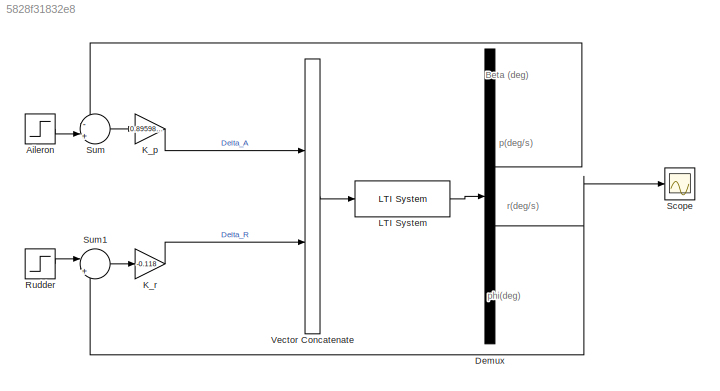
MODEL slx_5828f31832e8
KIND model
CONFIG AbsTol = auto
CONFIG EnableMultiTasking = off
CONFIG FixedStep = auto
CONFIG MaxStep = auto
CONFIG MinStep = auto
CONFIG RelTol = 1e-3
CONFIG SampleTimeConstraint = Unconstrained
CONFIG Solver = VariableStepAuto
CONFIG SolverName = VariableStepAuto
CONFIG StartTime = 0.0
CONFIG StopTime = 100
BLOCK [Step] Aileron
  SampleTime = 0
BLOCK [Demux] Demux
  DisplayOption = bar
  Ports = [1, 4]
BLOCK [Gain] K_p
  Gain = 0.895985533799095
  OutDataTypeStr = Inherit: Inherit via internal rule
  ParamDataTypeStr = Inherit: Inherit via internal rule
  SaturateOnIntegerOverflow = off
BLOCK [Gain] K_r 
  Gain = -0.118
  OutDataTypeStr = Inherit: Inherit via internal rule
  ParamDataTypeStr = Inherit: Inherit via internal rule
  SaturateOnIntegerOverflow = off
BLOCK [Reference] LTI System  REF=cstblocks/LTI System
  Ports = [1, 1]
  SourceBlock = cstblocks/LTI System
  SourceProductBaseCode = CT
  SourceProductName = Control System Toolbox
  SourceType = LTI Block
BLOCK [Step] Rudder
  After = 0
  SampleTime = 0
BLOCK [Scope] Scope
  Floating = off
  NumInputPorts = 1
  Ports = [1]
  ScopeSpecificationString = Simulink.scopes.TimeScopeBlockCfg('CurrentConfiguration', extmgr.ConfigurationSet(extmgr.Configuration('Core','General UI',true),extmgr.Configuration('Core','Source UI',true),extmgr.Configuration('Sources','WiredSimulink',true),extmgr.Configuration('Visuals','Time Domain',true,'SerializedDisplays',{struct('MinYLimReal','-0.30773','MaxYLimReal','2.66888','YLabelReal','','MinYLimMag','0.00000','MaxY...<+1327ch>
BLOCK [Sum] Sum
  IconShape = round
  InputSameDT = off
  Inputs = -|+||
  OutDataTypeStr = Inherit: Inherit via internal rule
  Ports = [2, 1]
  SaturateOnIntegerOverflow = off
BLOCK [Sum] Sum1
  IconShape = round
  InputSameDT = off
  Inputs = ||+|-
  OutDataTypeStr = Inherit: Inherit via internal rule
  Ports = [2, 1]
  SaturateOnIntegerOverflow = off
BLOCK [Concatenate] Vector Concatenate
  Ports = [2, 1]
ANNOTATION (root): Beta (deg)
ANNOTATION (root): p(deg/s)
ANNOTATION (root): phi(deg)
ANNOTATION (root): r(deg/s)
LINE Aileron:1 -> Sum:2
LINE Demux:2 -> Sum:1
NET Demux:3 -> Scope:1, Sum1:2
LINE K_p:1 -> Vector Concatenate:1
LINE K_r :1 -> Vector Concatenate:2
LINE LTI System:1 -> Demux:1
LINE Rudder:1 -> Sum1:1
LINE Sum1:1 -> K_r :1
LINE Sum:1 -> K_p:1
LINE Vector Concatenate:1 -> LTI System:1
note: NET lines group one-source signal fan-out (src -> all destinations, sorted); 1:1 wires keep LINE
